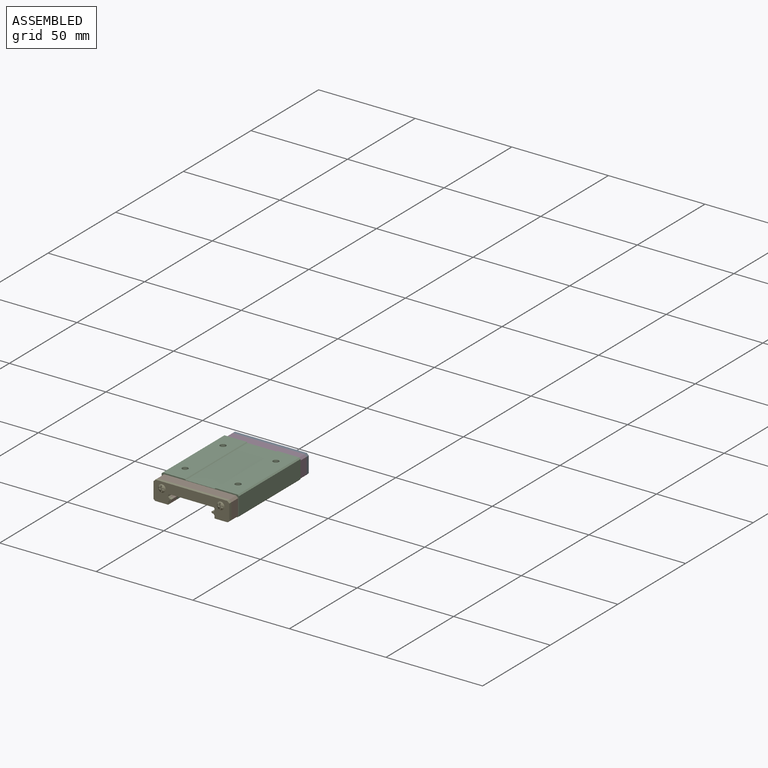
[diagram: assembled view]
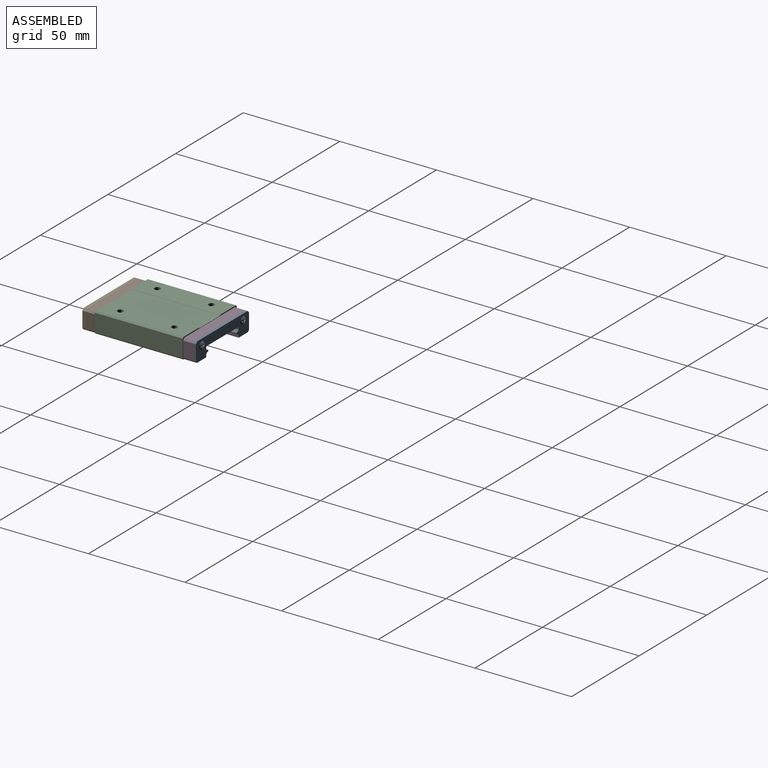
[diagram: assembled view, second angle]
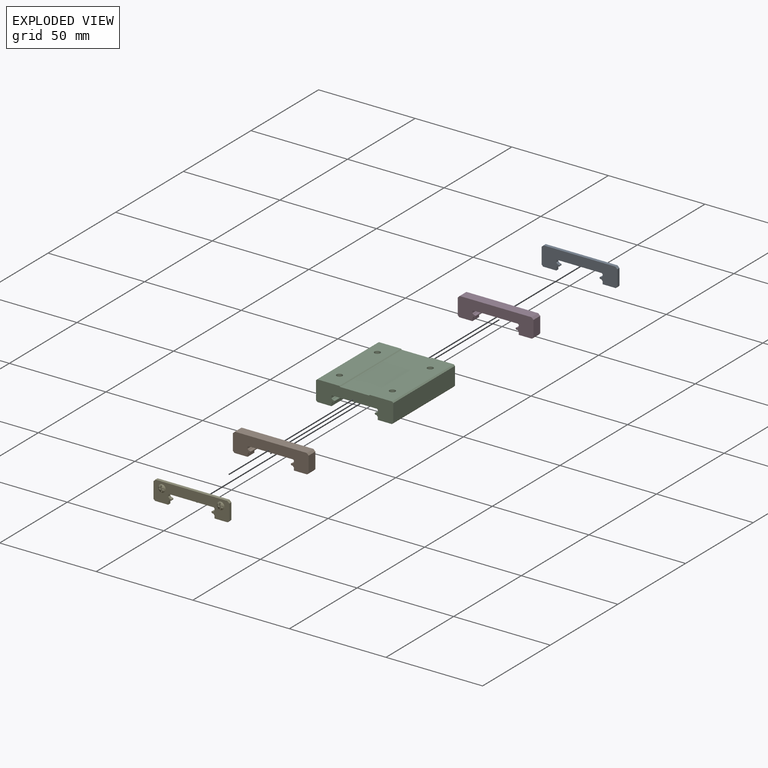
[diagram: exploded view]
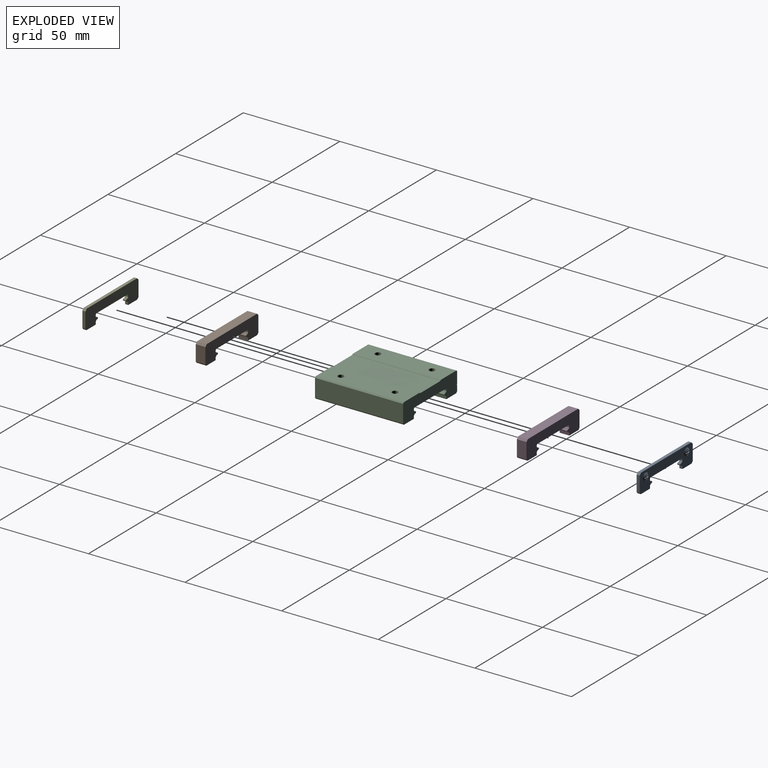
[diagram: exploded view, second angle]
ASSEMBLY  parts=5 mates=4
PART A: 68 faces, bbox 39.5x4.9x10.3 mm
  f0: torus R=0.1mm, axis (0,-1,0), area 8.8mm2, adj f1,f3,f4,f5,f6,f7,f8,f9
  f1: plane 1.48x1.09mm, normal (0,0,1), area 0.7mm2, adj f0,f2,f3,f64
  f2: plane 3x3mm, normal (0,1,0), area 3.7mm2, adj f1,f3,f4,f5,f6,f7,f8,f9
  f3: plane 1.47x1.09mm, normal (-1,0,0), area 0.7mm2, adj f0,f1,f2,f4
  f4: plane 0.7x0.37mm, normal (0,0,1), area 0.3mm2, adj f0,f2,f3,f5
  f5: plane 1.48x1.09mm, normal (1,0,0), area 0.7mm2, adj f0,f2,f4,f6
  f6: plane 1.47x1.09mm, normal (0,0,1), area 0.7mm2, adj f0,f2,f5,f7
  f7: plane 0.7x0.37mm, normal (1,0,0), area 0.3mm2, adj f0,f2,f6,f8
  f8: plane 1.48x1.09mm, normal (0,0,-1), area 0.7mm2, adj f0,f2,f7,f9
  f9: plane 1.47x1.09mm, normal (1,0,0), area 0.7mm2, adj f0,f2,f8,f10
  f10: plane 0.7x0.37mm, normal (0,0,-1), area 0.3mm2, adj f0,f2,f9,f11
  f11: plane 1.48x1.09mm, normal (-1,0,0), area 0.7mm2, adj f0,f2,f10,f12
  f12: plane 1.47x1.09mm, normal (0,0,-1), area 0.7mm2, adj f0,f2,f11,f64
  f13: plane 39.2x10mm, normal (0,1,0), area 248.6mm2, adj f0,f14,f27,f29,f30,f31,f32,f33
  f14: torus R=0.1mm, axis (0,-1,0), area 8.8mm2, adj f13,f15,f17,f18,f19,f20,f21,f22
  f15: plane 1.48x1.09mm, normal (0,0,1), area 0.7mm2, adj f14,f16,f17,f66
  f16: plane 3x3mm, normal (0,1,0), area 3.7mm2, adj f15,f17,f18,f19,f20,f21,f22,f23
  f17: plane 1.47x1.09mm, normal (-1,0,0), area 0.7mm2, adj f14,f15,f16,f18
  f18: plane 0.7x0.37mm, normal (0,0,1), area 0.3mm2, adj f14,f16,f17,f19
  f19: plane 1.48x1.09mm, normal (1,0,0), area 0.7mm2, adj f14,f16,f18,f20
  f20: plane 1.47x1.09mm, normal (0,0,1), area 0.7mm2, adj f14,f16,f19,f21
  f21: plane 0.7x0.37mm, normal (1,0,0), area 0.3mm2, adj f14,f16,f20,f22
  f22: plane 1.48x1.09mm, normal (0,0,-1), area 0.7mm2, adj f14,f16,f21,f23
  f23: plane 1.47x1.09mm, normal (1,0,0), area 0.7mm2, adj f14,f16,f22,f24
  f24: plane 0.7x0.37mm, normal (0,0,-1), area 0.3mm2, adj f14,f16,f23,f25
  f25: plane 1.48x1.09mm, normal (-1,0,0), area 0.7mm2, adj f14,f16,f24,f26
  f26: plane 1.47x1.09mm, normal (0,0,-1), area 0.7mm2, adj f14,f16,f25,f66
  f27: cylinder r=0.16mm len=1.6mm, axis (0,-1,0), area 0.3mm2, adj f13,f28,f29,f61
  f28: plane 39.2x10mm, normal (0,-1,0), area 272mm2, adj f27,f29,f30,f31,f32,f33,f34,f35
  f29: plane 1.6x1.38mm, normal (-1,0,0), area 2.2mm2, adj f13,f27,f28,f30
  f30: plane 6.8x1.6mm, normal (0,0,-1), area 10.9mm2, adj f13,f28,f29,f31
  f31: plane 1.6x0.8mm, normal (0.71,0,-0.71), area 1.8mm2, adj f13,f28,f30,f32
  f32: plane 8.2x1.6mm, normal (1,0,0), area 13.1mm2, adj f13,f28,f31,f33
  f33: plane 1.6x1mm, normal (0.71,0,0.71), area 2.3mm2, adj f13,f28,f32,f34
  f34: plane 37.2x1.6mm, normal (0,0,1), area 59.5mm2, adj f13,f28,f33,f35
  f35: plane 1.6x1mm, normal (-0.71,0,0.71), area 2.3mm2, adj f13,f28,f34,f36
  f36: plane 8.2x1.6mm, normal (-1,0,0), area 13.1mm2, adj f13,f28,f35,f37
  f37: plane 1.6x0.8mm, normal (-0.71,0,-0.71), area 1.8mm2, adj f13,f28,f36,f38
  f38: plane 6.8x1.6mm, normal (0,0,-1), area 10.9mm2, adj f13,f28,f37,f39
  f39: plane 1.6x1.38mm, normal (1,0,0), area 2.2mm2, adj f13,f28,f38,f40
  f40: cylinder r=0.16mm len=1.6mm, axis (0,-1,0), area 0.3mm2, adj f13,f28,f39,f41
  f41: cylinder r=1.27mm len=1.6mm, axis (0,-1,0), area 1.1mm2, adj f13,f28,f40,f42
  f42: cylinder r=0.16mm len=1.6mm, axis (0,-1,0), area 0.3mm2, adj f13,f28,f41,f43
  f43: plane 1.6x0.42mm, normal (0,0,-1), area 0.7mm2, adj f13,f28,f42,f44
  f44: cylinder r=0.5mm len=1.6mm, axis (0,-1,0), area 2.5mm2, adj f13,f28,f43,f45
  f45: plane 1.6x0.44mm, normal (0,0,1), area 0.7mm2, adj f13,f28,f44,f46
  f46: cylinder r=0.16mm len=1.6mm, axis (0,-1,0), area 0.2mm2, adj f13,f28,f45,f47
  f47: cylinder r=1.4mm len=1.6mm, axis (0,-1,0), area 1.1mm2, adj f13,f28,f46,f48
  f48: cylinder r=0.13mm len=1.6mm, axis (0,-1,0), area 0.3mm2, adj f13,f28,f47,f49
  f49: plane 1.6x0.88mm, normal (1,0,0), area 1.4mm2, adj f13,f28,f48,f50
  f50: plane 1.6x0.4mm, normal (0.71,0,-0.71), area 0.9mm2, adj f13,f28,f49,f51
  f51: plane 23.2x1.6mm, normal (0,0,-1), area 37.1mm2, adj f13,f28,f50,f52
  f52: plane 1.6x0.4mm, normal (-0.71,0,-0.71), area 0.9mm2, adj f13,f28,f51,f53
  f53: plane 1.6x0.88mm, normal (-1,0,0), area 1.4mm2, adj f13,f28,f52,f54
  f54: cylinder r=0.16mm len=1.6mm, axis (0,-1,0), area 0.3mm2, adj f13,f28,f53,f55
  f55: cylinder r=1.27mm len=1.6mm, axis (0,-1,0), area 1.1mm2, adj f13,f28,f54,f56
  f56: cylinder r=0.14mm len=1.6mm, axis (0,-1,0), area 0.3mm2, adj f13,f28,f55,f57
  f57: plane 1.6x0.42mm, normal (0,0,1), area 0.7mm2, adj f13,f28,f56,f58
  f58: cylinder r=0.5mm len=1.6mm, axis (0,-1,0), area 2.5mm2, adj f13,f28,f57,f59
  f59: plane 1.6x0.42mm, normal (0,0,-1), area 0.7mm2, adj f13,f28,f58,f60
  f60: cylinder r=0.16mm len=1.6mm, axis (0,-1,0), area 0.3mm2, adj f13,f28,f59,f61
  f61: cylinder r=1.27mm len=1.6mm, axis (0,-1,0), area 1.1mm2, adj f13,f27,f28,f60
  f62: torus R=0.1mm, axis (0,-1,0), area 17.6mm2, adj f64,f65
  f63: torus R=0.1mm, axis (0,-1,0), area 17.6mm2, adj f66,f67
  f64: plane 4.25x4.13mm, normal (-1,0,0), area 13.6mm2, adj f0,f1,f2,f12,f62
  f65: plane 0.61x0.03mm, normal (-1,0,0), area 0mm2, adj f0,f62
  f66: plane 4.25x4.13mm, normal (-1,0,0), area 13.6mm2, adj f14,f15,f16,f26,f63
  f67: plane 0.61x0.03mm, normal (-1,0,0), area 0mm2, adj f14,f63
PART B: 36 faces, bbox 39.2x5x10 mm
  f0: cylinder r=1.27mm len=5mm, axis (0,1,0), area 3.5mm2, adj f1,f33,f34,f35
  f1: cylinder r=0.16mm len=5mm, axis (0,1,0), area 0.9mm2, adj f0,f2,f34,f35
  f2: plane 5x0.42mm, normal (0,0,-1), area 2.1mm2, adj f1,f3,f34,f35
  f3: cylinder r=0.5mm len=5mm, axis (0,1,0), area 7.9mm2, adj f2,f4,f34,f35
  f4: plane 5x0.42mm, normal (0,0,1), area 2.1mm2, adj f3,f5,f34,f35
  f5: cylinder r=0.14mm len=5mm, axis (0,1,0), area 0.9mm2, adj f4,f6,f34,f35
  f6: cylinder r=1.27mm len=5mm, axis (0,1,0), area 3.5mm2, adj f5,f7,f34,f35
  f7: cylinder r=0.16mm len=5mm, axis (0,1,0), area 0.8mm2, adj f6,f8,f34,f35
  f8: plane 5x0.88mm, normal (1,0,0), area 4.4mm2, adj f7,f9,f34,f35
  f9: plane 5x0.4mm, normal (0.71,0,-0.71), area 2.8mm2, adj f8,f10,f34,f35
  f10: plane 23.2x5mm, normal (0,0,-1), area 116mm2, adj f9,f11,f34,f35
  f11: plane 5x0.4mm, normal (-0.71,0,-0.71), area 2.8mm2, adj f10,f12,f34,f35
  f12: plane 5x0.88mm, normal (-1,0,0), area 4.4mm2, adj f11,f13,f34,f35
  f13: cylinder r=0.13mm len=5mm, axis (0,1,0), area 0.8mm2, adj f12,f14,f34,f35
  f14: cylinder r=1.4mm len=5mm, axis (0,1,0), area 3.4mm2, adj f13,f15,f34,f35
  f15: cylinder r=0.16mm len=5mm, axis (0,1,0), area 0.8mm2, adj f14,f16,f34,f35
  f16: plane 5x0.44mm, normal (0,0,1), area 2.2mm2, adj f15,f17,f34,f35
  f17: cylinder r=0.5mm len=5mm, axis (0,1,0), area 7.9mm2, adj f16,f18,f34,f35
  f18: plane 5x0.42mm, normal (0,0,-1), area 2.1mm2, adj f17,f19,f34,f35
  f19: cylinder r=0.16mm len=5mm, axis (0,1,0), area 0.9mm2, adj f18,f20,f34,f35
  f20: cylinder r=1.27mm len=5mm, axis (0,1,0), area 3.5mm2, adj f19,f21,f34,f35
  f21: cylinder r=0.16mm len=5mm, axis (0,1,0), area 0.8mm2, adj f20,f22,f34,f35
  f22: plane 5x1.38mm, normal (-1,0,0), area 6.9mm2, adj f21,f23,f34,f35
  f23: plane 6.8x5mm, normal (0,0,-1), area 34mm2, adj f22,f24,f34,f35
  f24: plane 5x0.8mm, normal (0.71,0,-0.71), area 5.7mm2, adj f23,f25,f34,f35
  f25: plane 8.2x5mm, normal (1,0,0), area 41mm2, adj f24,f26,f34,f35
  f26: plane 5x1mm, normal (0.71,0,0.71), area 7.1mm2, adj f25,f27,f34,f35
  f27: plane 37.2x5mm, normal (0,0,1), area 186mm2, adj f26,f28,f34,f35
  f28: plane 5x1mm, normal (-0.71,0,0.71), area 7.1mm2, adj f27,f29,f34,f35
  f29: plane 8.2x5mm, normal (-1,0,0), area 41mm2, adj f28,f30,f34,f35
  f30: plane 5x0.8mm, normal (-0.71,0,-0.71), area 5.7mm2, adj f29,f31,f34,f35
  f31: plane 6.8x5mm, normal (0,0,-1), area 34mm2, adj f30,f32,f34,f35
  f32: plane 5x1.38mm, normal (1,0,0), area 6.9mm2, adj f31,f33,f34,f35
  f33: cylinder r=0.16mm len=5mm, axis (0,1,0), area 0.8mm2, adj f0,f32,f34,f35
  f34: plane 39.2x10mm, normal (0,-1,0), area 272mm2, adj f0,f1,f2,f3,f4,f5,f6,f7
  f35: plane 39.2x10mm, normal (0,1,0), area 272mm2, adj f0,f1,f2,f3,f4,f5,f6,f7
PART C: 50 faces, bbox 40x45.6x10.6 mm
  f0: cylinder r=0.4mm len=45.6mm, axis (0,1,0), area 38.2mm2, adj f1,f39,f40,f41
  f1: plane 45.6x2.75mm, normal (-1,0,0), area 125.6mm2, adj f0,f2,f40,f41
  f2: plane 45.6x0.7mm, normal (-0.71,0,-0.71), area 45.1mm2, adj f1,f3,f40,f41
  f3: plane 45.6x7.3mm, normal (0,0,-1), area 332.9mm2, adj f2,f4,f40,f41
  f4: plane 45.6x1.38mm, normal (1,0,0), area 62.9mm2, adj f3,f5,f40,f41
  f5: cylinder r=0.16mm len=45.6mm, axis (0,1,0), area 7.5mm2, adj f4,f6,f40,f41
  f6: cylinder r=1.27mm len=45.6mm, axis (0,1,0), area 31.5mm2, adj f5,f7,f40,f41
  f7: cylinder r=0.16mm len=45.6mm, axis (0,1,0), area 8mm2, adj f6,f8,f40,f41
  f8: plane 45.6x0.42mm, normal (0,0,-1), area 19mm2, adj f7,f9,f40,f41
  f9: cylinder r=0.5mm len=45.6mm, axis (0,1,0), area 71.6mm2, adj f8,f10,f40,f41
  f10: plane 45.6x0.42mm, normal (0,0,1), area 19.1mm2, adj f9,f11,f40,f41
  f11: cylinder r=0.14mm len=45.6mm, axis (0,1,0), area 8.1mm2, adj f10,f12,f40,f41
  f12: cylinder r=1.27mm len=45.6mm, axis (0,1,0), area 31.5mm2, adj f11,f13,f40,f41
  f13: cylinder r=0.16mm len=45.6mm, axis (0,1,0), area 7.5mm2, adj f12,f14,f40,f41
  f14: plane 45.6x0.88mm, normal (1,0,0), area 40.1mm2, adj f13,f15,f40,f41
  f15: plane 45.6x0.4mm, normal (0.71,0,-0.71), area 25.8mm2, adj f14,f16,f40,f41
  f16: plane 45.6x23.2mm, normal (0,0,-1), area 1057.9mm2, adj f15,f17,f40,f41
  f17: plane 45.6x0.4mm, normal (-0.71,0,-0.71), area 25.8mm2, adj f16,f18,f40,f41
  f18: plane 45.6x0.88mm, normal (-1,0,0), area 40.1mm2, adj f17,f19,f40,f41
  f19: cylinder r=0.13mm len=45.6mm, axis (0,1,0), area 7.6mm2, adj f18,f20,f40,f41
  f20: cylinder r=1.4mm len=45.6mm, axis (0,1,0), area 31.4mm2, adj f19,f21,f40,f41
  f21: cylinder r=0.16mm len=45.6mm, axis (0,1,0), area 7mm2, adj f20,f22,f40,f41
  f22: plane 45.6x0.44mm, normal (0,0,1), area 19.9mm2, adj f21,f23,f40,f41
  f23: cylinder r=0.5mm len=45.6mm, axis (0,1,0), area 71.6mm2, adj f22,f24,f40,f41
  f24: plane 45.6x0.42mm, normal (0,0,-1), area 19mm2, adj f23,f25,f40,f41
  f25: cylinder r=0.16mm len=45.6mm, axis (0,1,0), area 7.9mm2, adj f24,f26,f40,f41
  f26: cylinder r=1.27mm len=45.6mm, axis (0,1,0), area 31.5mm2, adj f25,f27,f40,f41
  f27: cylinder r=0.16mm len=45.6mm, axis (0,1,0), area 7.5mm2, adj f26,f28,f40,f41
  f28: plane 45.6x1.38mm, normal (-1,0,0), area 62.9mm2, adj f27,f29,f40,f41
  f29: plane 45.6x7.3mm, normal (0,0,-1), area 332.9mm2, adj f28,f30,f40,f41
  f30: plane 45.6x0.7mm, normal (0.71,0,-0.71), area 45.1mm2, adj f29,f31,f40,f41
  f31: plane 45.6x9.3mm, normal (1,0,0), area 424.1mm2, adj f30,f32,f40,f41
  f32: plane 45.6x0.6mm, normal (0.71,0,0.71), area 38.7mm2, adj f31,f33,f40,f41
  f33: plane 45.6x11.5mm, normal (0,0,1), area 510.3mm2, adj f32,f34,f40,f41,f46,f48
  f34: plane 45.6x0.4mm, normal (-0.71,0,0.71), area 25.8mm2, adj f33,f35,f40,f41
  f35: plane 45.6x15mm, normal (0,0,1), area 684mm2, adj f34,f36,f40,f41
  f36: plane 45.6x0.4mm, normal (0.71,0,0.71), area 25.8mm2, adj f35,f37,f40,f41
  f37: plane 45.6x11.5mm, normal (0,0,1), area 510.3mm2, adj f36,f38,f40,f41,f42,f44
  f38: plane 45.6x0.6mm, normal (-0.71,0,0.71), area 38.7mm2, adj f37,f39,f40,f41
  f39: plane 45.6x5.85mm, normal (-1,0,0), area 266.9mm2, adj f0,f38,f40,f41
  f40: plane 40x10.6mm, normal (0,-1,0), area 298.6mm2, adj f0,f1,f2,f3,f4,f5,f6,f7
  f41: plane 40x10.6mm, normal (0,1,0), area 298.6mm2, adj f0,f1,f2,f3,f4,f5,f6,f7
  f42: cylinder r=1.5mm len=3.6mm, axis (0,0,1), area 33.9mm2, adj f37,f43
  f43: plane 3x3mm, normal (0,0,1), area 7.1mm2, adj f42
  f44: cylinder r=1.5mm len=3.6mm, axis (0,0,1), area 33.9mm2, adj f37,f45
  f45: plane 3x3mm, normal (0,0,1), area 7.1mm2, adj f44
  f46: cylinder r=1.5mm len=3.6mm, axis (0,0,1), area 33.9mm2, adj f33,f47
  f47: plane 3x3mm, normal (0,0,1), area 7.1mm2, adj f46
  f48: cylinder r=1.5mm len=3.6mm, axis (0,0,1), area 33.9mm2, adj f33,f49
  f49: plane 3x3mm, normal (0,0,1), area 7.1mm2, adj f48
PART D: 36 faces, bbox 39.2x5x10 mm
  f0: cylinder r=1.27mm len=5mm, axis (0,1,0), area 3.5mm2, adj f1,f33,f34,f35
  f1: cylinder r=0.16mm len=5mm, axis (0,1,0), area 0.9mm2, adj f0,f2,f34,f35
  f2: plane 5x0.42mm, normal (0,0,-1), area 2.1mm2, adj f1,f3,f34,f35
  f3: cylinder r=0.5mm len=5mm, axis (0,1,0), area 7.9mm2, adj f2,f4,f34,f35
  f4: plane 5x0.42mm, normal (0,0,1), area 2.1mm2, adj f3,f5,f34,f35
  f5: cylinder r=0.14mm len=5mm, axis (0,1,0), area 0.9mm2, adj f4,f6,f34,f35
  f6: cylinder r=1.27mm len=5mm, axis (0,1,0), area 3.5mm2, adj f5,f7,f34,f35
  f7: cylinder r=0.16mm len=5mm, axis (0,1,0), area 0.8mm2, adj f6,f8,f34,f35
  f8: plane 5x0.88mm, normal (1,0,0), area 4.4mm2, adj f7,f9,f34,f35
  f9: plane 5x0.4mm, normal (0.71,0,-0.71), area 2.8mm2, adj f8,f10,f34,f35
  f10: plane 23.2x5mm, normal (0,0,-1), area 116mm2, adj f9,f11,f34,f35
  f11: plane 5x0.4mm, normal (-0.71,0,-0.71), area 2.8mm2, adj f10,f12,f34,f35
  f12: plane 5x0.88mm, normal (-1,0,0), area 4.4mm2, adj f11,f13,f34,f35
  f13: cylinder r=0.13mm len=5mm, axis (0,1,0), area 0.8mm2, adj f12,f14,f34,f35
  f14: cylinder r=1.4mm len=5mm, axis (0,1,0), area 3.4mm2, adj f13,f15,f34,f35
  f15: cylinder r=0.16mm len=5mm, axis (0,1,0), area 0.8mm2, adj f14,f16,f34,f35
  f16: plane 5x0.44mm, normal (0,0,1), area 2.2mm2, adj f15,f17,f34,f35
  f17: cylinder r=0.5mm len=5mm, axis (0,1,0), area 7.9mm2, adj f16,f18,f34,f35
  f18: plane 5x0.42mm, normal (0,0,-1), area 2.1mm2, adj f17,f19,f34,f35
  f19: cylinder r=0.16mm len=5mm, axis (0,1,0), area 0.9mm2, adj f18,f20,f34,f35
  f20: cylinder r=1.27mm len=5mm, axis (0,1,0), area 3.5mm2, adj f19,f21,f34,f35
  f21: cylinder r=0.16mm len=5mm, axis (0,1,0), area 0.8mm2, adj f20,f22,f34,f35
  f22: plane 5x1.38mm, normal (-1,0,0), area 6.9mm2, adj f21,f23,f34,f35
  f23: plane 6.8x5mm, normal (0,0,-1), area 34mm2, adj f22,f24,f34,f35
  f24: plane 5x0.8mm, normal (0.71,0,-0.71), area 5.7mm2, adj f23,f25,f34,f35
  f25: plane 8.2x5mm, normal (1,0,0), area 41mm2, adj f24,f26,f34,f35
  f26: plane 5x1mm, normal (0.71,0,0.71), area 7.1mm2, adj f25,f27,f34,f35
  f27: plane 37.2x5mm, normal (0,0,1), area 186mm2, adj f26,f28,f34,f35
  f28: plane 5x1mm, normal (-0.71,0,0.71), area 7.1mm2, adj f27,f29,f34,f35
  f29: plane 8.2x5mm, normal (-1,0,0), area 41mm2, adj f28,f30,f34,f35
  f30: plane 5x0.8mm, normal (-0.71,0,-0.71), area 5.7mm2, adj f29,f31,f34,f35
  f31: plane 6.8x5mm, normal (0,0,-1), area 34mm2, adj f30,f32,f34,f35
  f32: plane 5x1.38mm, normal (1,0,0), area 6.9mm2, adj f31,f33,f34,f35
  f33: cylinder r=0.16mm len=5mm, axis (0,1,0), area 0.8mm2, adj f0,f32,f34,f35
  f34: plane 39.2x10mm, normal (0,-1,0), area 272mm2, adj f0,f1,f2,f3,f4,f5,f6,f7
  f35: plane 39.2x10mm, normal (0,1,0), area 272mm2, adj f0,f1,f2,f3,f4,f5,f6,f7
PART E: 68 faces, bbox 39.5x4.9x10.3 mm
  f0: torus R=0.1mm, axis (0,1,0), area 8.8mm2, adj f1,f3,f4,f5,f6,f7,f8,f9
  f1: plane 1.48x1.09mm, normal (0,0,1), area 0.7mm2, adj f0,f2,f3,f64
  f2: plane 3x3mm, normal (0,-1,0), area 3.7mm2, adj f1,f3,f4,f5,f6,f7,f8,f9
  f3: plane 1.47x1.09mm, normal (1,0,0), area 0.7mm2, adj f0,f1,f2,f4
  f4: plane 0.7x0.37mm, normal (0,0,1), area 0.3mm2, adj f0,f2,f3,f5
  f5: plane 1.48x1.09mm, normal (-1,0,0), area 0.7mm2, adj f0,f2,f4,f6
  f6: plane 1.47x1.09mm, normal (0,0,1), area 0.7mm2, adj f0,f2,f5,f7
  f7: plane 0.7x0.37mm, normal (-1,0,0), area 0.3mm2, adj f0,f2,f6,f8
  f8: plane 1.48x1.09mm, normal (0,0,-1), area 0.7mm2, adj f0,f2,f7,f9
  f9: plane 1.47x1.09mm, normal (-1,0,0), area 0.7mm2, adj f0,f2,f8,f10
  f10: plane 0.7x0.37mm, normal (0,0,-1), area 0.3mm2, adj f0,f2,f9,f11
  f11: plane 1.48x1.09mm, normal (1,0,0), area 0.7mm2, adj f0,f2,f10,f12
  f12: plane 1.47x1.09mm, normal (0,0,-1), area 0.7mm2, adj f0,f2,f11,f64
  f13: plane 39.2x10mm, normal (0,-1,0), area 248.6mm2, adj f0,f14,f27,f29,f30,f31,f32,f33
  f14: torus R=0.1mm, axis (0,1,0), area 8.8mm2, adj f13,f15,f17,f18,f19,f20,f21,f22
  f15: plane 1.48x1.09mm, normal (0,0,1), area 0.7mm2, adj f14,f16,f17,f66
  f16: plane 3x3mm, normal (0,-1,0), area 3.7mm2, adj f15,f17,f18,f19,f20,f21,f22,f23
  f17: plane 1.47x1.09mm, normal (1,0,0), area 0.7mm2, adj f14,f15,f16,f18
  f18: plane 0.7x0.37mm, normal (0,0,1), area 0.3mm2, adj f14,f16,f17,f19
  f19: plane 1.48x1.09mm, normal (-1,0,0), area 0.7mm2, adj f14,f16,f18,f20
  f20: plane 1.47x1.09mm, normal (0,0,1), area 0.7mm2, adj f14,f16,f19,f21
  f21: plane 0.7x0.37mm, normal (-1,0,0), area 0.3mm2, adj f14,f16,f20,f22
  f22: plane 1.48x1.09mm, normal (0,0,-1), area 0.7mm2, adj f14,f16,f21,f23
  f23: plane 1.47x1.09mm, normal (-1,0,0), area 0.7mm2, adj f14,f16,f22,f24
  f24: plane 0.7x0.37mm, normal (0,0,-1), area 0.3mm2, adj f14,f16,f23,f25
  f25: plane 1.48x1.09mm, normal (1,0,0), area 0.7mm2, adj f14,f16,f24,f26
  f26: plane 1.47x1.09mm, normal (0,0,-1), area 0.7mm2, adj f14,f16,f25,f66
  f27: cylinder r=0.16mm len=1.6mm, axis (0,1,0), area 0.3mm2, adj f13,f28,f29,f61
  f28: plane 39.2x10mm, normal (0,1,0), area 272mm2, adj f27,f29,f30,f31,f32,f33,f34,f35
  f29: plane 1.6x1.38mm, normal (1,0,0), area 2.2mm2, adj f13,f27,f28,f30
  f30: plane 6.8x1.6mm, normal (0,0,-1), area 10.9mm2, adj f13,f28,f29,f31
  f31: plane 1.6x0.8mm, normal (-0.71,0,-0.71), area 1.8mm2, adj f13,f28,f30,f32
  f32: plane 8.2x1.6mm, normal (-1,0,0), area 13.1mm2, adj f13,f28,f31,f33
  f33: plane 1.6x1mm, normal (-0.71,0,0.71), area 2.3mm2, adj f13,f28,f32,f34
  f34: plane 37.2x1.6mm, normal (0,0,1), area 59.5mm2, adj f13,f28,f33,f35
  f35: plane 1.6x1mm, normal (0.71,0,0.71), area 2.3mm2, adj f13,f28,f34,f36
  f36: plane 8.2x1.6mm, normal (1,0,0), area 13.1mm2, adj f13,f28,f35,f37
  f37: plane 1.6x0.8mm, normal (0.71,0,-0.71), area 1.8mm2, adj f13,f28,f36,f38
  f38: plane 6.8x1.6mm, normal (0,0,-1), area 10.9mm2, adj f13,f28,f37,f39
  f39: plane 1.6x1.38mm, normal (-1,0,0), area 2.2mm2, adj f13,f28,f38,f40
  f40: cylinder r=0.16mm len=1.6mm, axis (0,1,0), area 0.3mm2, adj f13,f28,f39,f41
  f41: cylinder r=1.27mm len=1.6mm, axis (0,1,0), area 1.1mm2, adj f13,f28,f40,f42
  f42: cylinder r=0.16mm len=1.6mm, axis (0,1,0), area 0.3mm2, adj f13,f28,f41,f43
  f43: plane 1.6x0.42mm, normal (0,0,-1), area 0.7mm2, adj f13,f28,f42,f44
  f44: cylinder r=0.5mm len=1.6mm, axis (0,1,0), area 2.5mm2, adj f13,f28,f43,f45
  f45: plane 1.6x0.44mm, normal (0,0,1), area 0.7mm2, adj f13,f28,f44,f46
  f46: cylinder r=0.16mm len=1.6mm, axis (0,1,0), area 0.2mm2, adj f13,f28,f45,f47
  f47: cylinder r=1.4mm len=1.6mm, axis (0,1,0), area 1.1mm2, adj f13,f28,f46,f48
  f48: cylinder r=0.13mm len=1.6mm, axis (0,1,0), area 0.3mm2, adj f13,f28,f47,f49
  f49: plane 1.6x0.88mm, normal (-1,0,0), area 1.4mm2, adj f13,f28,f48,f50
  f50: plane 1.6x0.4mm, normal (-0.71,0,-0.71), area 0.9mm2, adj f13,f28,f49,f51
  f51: plane 23.2x1.6mm, normal (0,0,-1), area 37.1mm2, adj f13,f28,f50,f52
  f52: plane 1.6x0.4mm, normal (0.71,0,-0.71), area 0.9mm2, adj f13,f28,f51,f53
  f53: plane 1.6x0.88mm, normal (1,0,0), area 1.4mm2, adj f13,f28,f52,f54
  f54: cylinder r=0.16mm len=1.6mm, axis (0,1,0), area 0.3mm2, adj f13,f28,f53,f55
  f55: cylinder r=1.27mm len=1.6mm, axis (0,1,0), area 1.1mm2, adj f13,f28,f54,f56
  f56: cylinder r=0.14mm len=1.6mm, axis (0,1,0), area 0.3mm2, adj f13,f28,f55,f57
  f57: plane 1.6x0.42mm, normal (0,0,1), area 0.7mm2, adj f13,f28,f56,f58
  f58: cylinder r=0.5mm len=1.6mm, axis (0,1,0), area 2.5mm2, adj f13,f28,f57,f59
  f59: plane 1.6x0.42mm, normal (0,0,-1), area 0.7mm2, adj f13,f28,f58,f60
  f60: cylinder r=0.16mm len=1.6mm, axis (0,1,0), area 0.3mm2, adj f13,f28,f59,f61
  f61: cylinder r=1.27mm len=1.6mm, axis (0,1,0), area 1.1mm2, adj f13,f27,f28,f60
  f62: torus R=0.1mm, axis (0,1,0), area 17.6mm2, adj f64,f65
  f63: torus R=0.1mm, axis (0,1,0), area 17.6mm2, adj f66,f67
  f64: plane 4.25x4.13mm, normal (1,0,0), area 13.6mm2, adj f0,f1,f2,f12,f62
  f65: plane 0.61x0.03mm, normal (1,0,0), area 0mm2, adj f0,f62
  f66: plane 4.25x4.13mm, normal (1,0,0), area 13.6mm2, adj f14,f15,f16,f26,f63
  f67: plane 0.61x0.03mm, normal (1,0,0), area 0mm2, adj f14,f63
PLACE A t=(-0.09,22.65,-5.45)mm
PLACE B t=(-0.09,22.65,-5.45)mm
PLACE C t=(-0.09,22.65,-5.45)mm
PLACE D t=(-0.09,22.65,-5.45)mm
PLACE E t=(-0.09,22.65,-5.45)mm
MATE fastened D.f35 <-> A.f28  axis (0,1,0) through (-0.09,27.65,-0.35)mm
MATE fastened B.f34 <-> E.f28  axis (0,-1,0) through (-0.09,-27.95,-0.35)mm
MATE fastened C.f40 <-> B.f35  axis (0,-1,0) through (-0.09,-22.95,-0.35)mm
MATE fastened D.f34 <-> C.f41  axis (0,-1,0) through (-0.09,22.65,-0.35)mm
